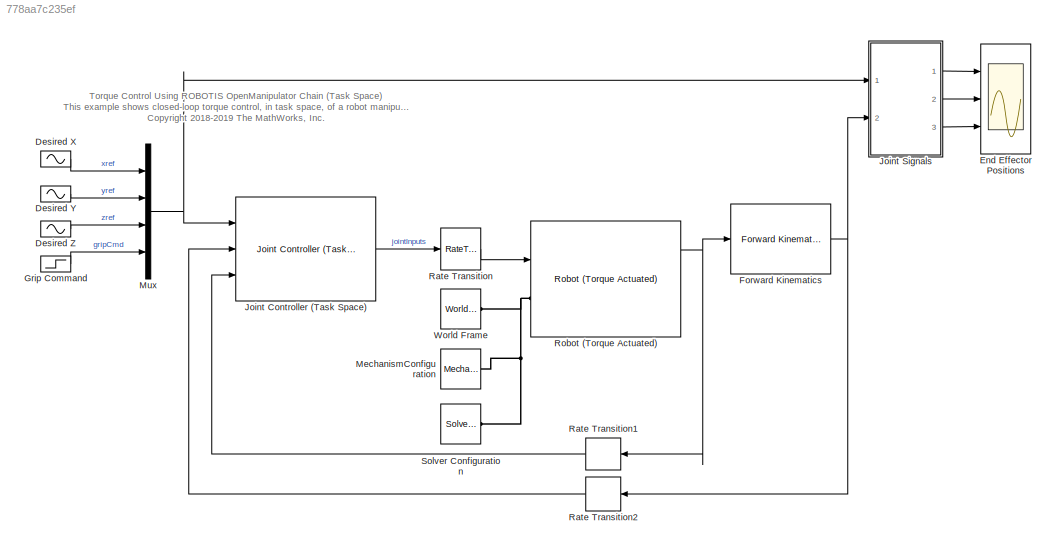
MODEL slx_778aa7c235ef
KIND model
CONFIG AbsTol = auto
CONFIG EnableMultiTasking = off
CONFIG FixedStep = auto
CONFIG MaxStep = auto
CONFIG MinStep = auto
CONFIG PreLoadFcn = openManipulatorParameters;
CONFIG RelTol = 1e-3
CONFIG SampleTimeConstraint = Unconstrained
CONFIG Solver = VariableStepAuto
CONFIG SolverName = VariableStepAuto
CONFIG StartTime = 0.0
CONFIG StopTime = 20
BLOCK [Sin] Desired X
  Amplitude = 0.1
  Bias = 0.2
  Frequency = 0.3
  Phase = pi/4
  Ports = [0, 1]
  SampleTime = TsCtrl
BLOCK [Sin] Desired Y
  Amplitude = 0.1
  Frequency = 0.4
  Ports = [0, 1]
  SampleTime = TsCtrl
BLOCK [Sin] Desired Z
  Amplitude = 0.05
  Bias = 0.2
  Frequency = 0.5
  Ports = [0, 1]
  SampleTime = TsCtrl
BLOCK [Scope] End Effector Positions
  Floating = off
  NumInputPorts = 3
  Ports = [3]
  ScopeSpecificationString = Simulink.scopes.TimeScopeBlockCfg('CurrentConfiguration', extmgr.ConfigurationSet(extmgr.Configuration('Core','General UI',true),extmgr.Configuration('Core','Source UI',true),extmgr.Configuration('Sources','WiredSimulink',true),extmgr.Configuration('Visuals','Time Domain',true,'SerializedDisplays',{struct('MinYLimReal','0.23896','MaxYLimReal','0.30678','YLabelReal','','MinYLimMag','0.23896','MaxYL...<+2721ch>
BLOCK [Reference] Forward Kinematics  REF=OpenManipulatorLib/Forward Kinematics
  Ports = [1, 1]
  SourceBlock = OpenManipulatorLib/Forward Kinematics
  SourceType = SubSystem
BLOCK [Step] Grip Command
  SampleTime = TsCtrl
  Time = 10
BLOCK [Reference] Joint Controller (Task Space)  REF=OpenManipulatorLib/Joint Controller (Task Space)
  Ports = [3, 1]
  SourceBlock = OpenManipulatorLib/Joint Controller (Task Space)
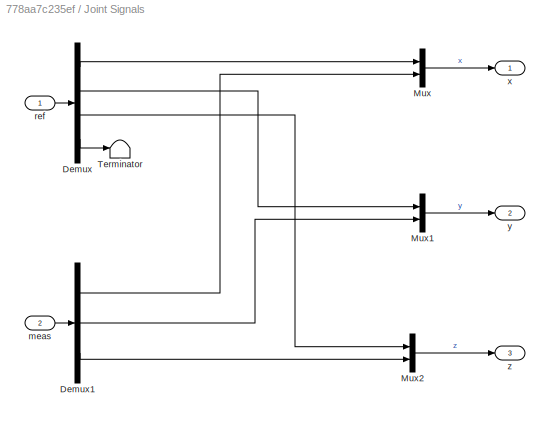
BLOCK [SubSystem] Joint Signals
  Ports = [2, 3]
  RequestExecContextInheritance = off
BLOCK [Demux] Joint Signals/Demux
  DisplayOption = bar
  Ports = [1, 4]
BLOCK [Demux] Joint Signals/Demux1
  DisplayOption = bar
  Outputs = 3
  Ports = [1, 3]
BLOCK [Mux] Joint Signals/Mux
  DisplayOption = bar
  Inputs = 2
  Ports = [2, 1]
BLOCK [Mux] Joint Signals/Mux1
  DisplayOption = bar
  Inputs = 2
  Ports = [2, 1]
BLOCK [Mux] Joint Signals/Mux2
  DisplayOption = bar
  Inputs = 2
  Ports = [2, 1]
BLOCK [Terminator] Joint Signals/Terminator
BLOCK [Inport] Joint Signals/meas
  IconDisplay = Port number
  Port = 2
BLOCK [Inport] Joint Signals/ref
  IconDisplay = Port number
BLOCK [Outport] Joint Signals/x
  IconDisplay = Port number
  VectorParamsAs1DForOutWhenUnconnected = off
BLOCK [Outport] Joint Signals/y
  IconDisplay = Port number
  Port = 2
  VectorParamsAs1DForOutWhenUnconnected = off
BLOCK [Outport] Joint Signals/z
  IconDisplay = Port number
  Port = 3
  VectorParamsAs1DForOutWhenUnconnected = off
BLOCK [Reference] MechanismConfiguration  REF=sm_lib/Utilities/Mechanism
Configuration
  Ports = [0, 0, 0, 0, 0, 0, 1]
  SourceBlock = sm_lib/Utilities/Mechanism\nConfiguration
  SourceProductBaseCode = MS
  SourceProductName = Simscape Multibody
  SourceType = Mechanism\nConfiguration
BLOCK [Mux] Mux
  DisplayOption = bar
  Ports = [4, 1]
BLOCK [RateTransition] Rate Transition
BLOCK [RateTransition] Rate Transition1
BLOCK [RateTransition] Rate Transition2
BLOCK [Reference] Robot (Torque Actuated)  REF=OpenManipulatorLib/Robot 
(Torque Actuated)
  Ports = [1, 1, 0, 0, 0, 1, 2]
  SourceBlock = OpenManipulatorLib/Robot \n(Torque Actuated)
BLOCK [Reference] Solver Configuration  REF=nesl_utility/Solver
Configuration
  Ports = [0, 0, 0, 0, 0, 0, 1]
  SourceBlock = nesl_utility/Solver\nConfiguration
  SourceProductBaseCode = SS
  SourceProductName = Simscape
  SourceType = Solver\nConfiguration
BLOCK [Reference] World Frame  REF=sm_lib/Frames and
Transforms/World Frame
  Ports = [0, 0, 0, 0, 0, 0, 1]
  SourceBlock = sm_lib/Frames and\nTransforms/World Frame
  SourceProductBaseCode = MS
  SourceProductName = Simscape Multibody
  SourceType = World Frame
ANNOTATION (root): Torque Control Using ROBOTIS OpenManipulator Chain (Task Space) This example shows closed-loop torque control, in task space, of a robot manipulator to track a set of reference end effector positions. <copyright redacted>
LINE Desired X:1 -> Mux:1
LINE Desired Y:1 -> Mux:2
LINE Desired Z:1 -> Mux:3
NET Forward Kinematics:1 -> Joint Signals:2, Rate Transition2:1
LINE Grip Command:1 -> Mux:4
LINE Joint Controller (Task Space):1 -> Rate Transition:1
LINE Joint Signals/Demux1:1 -> Joint Signals/Mux:2
LINE Joint Signals/Demux1:2 -> Joint Signals/Mux1:2
LINE Joint Signals/Demux1:3 -> Joint Signals/Mux2:2
LINE Joint Signals/Demux:1 -> Joint Signals/Mux:1
LINE Joint Signals/Demux:2 -> Joint Signals/Mux1:1
LINE Joint Signals/Demux:3 -> Joint Signals/Mux2:1
LINE Joint Signals/Demux:4 -> Joint Signals/Terminator:1
LINE Joint Signals/Mux1:1 -> Joint Signals/y:1
LINE Joint Signals/Mux2:1 -> Joint Signals/z:1
LINE Joint Signals/Mux:1 -> Joint Signals/x:1
LINE Joint Signals/meas:1 -> Joint Signals/Demux1:1
LINE Joint Signals/ref:1 -> Joint Signals/Demux:1
LINE Joint Signals:1 -> End Effector Positions:1
LINE Joint Signals:2 -> End Effector Positions:2
LINE Joint Signals:3 -> End Effector Positions:3
NET Mux:1 -> Joint Controller (Task Space):1, Joint Signals:1
LINE Rate Transition1:1 -> Joint Controller (Task Space):3
LINE Rate Transition2:1 -> Joint Controller (Task Space):2
LINE Rate Transition:1 -> Robot (Torque Actuated):1
NET Robot (Torque Actuated):1 -> Forward Kinematics:1, Rate Transition1:1
PNET net1: MechanismConfiguration:RConn1 -- Robot (Torque Actuated):LConn1 -- Solver Configuration:RConn1 -- World Frame:RConn1
note: NET lines group one-source signal fan-out (src -> all destinations, sorted); 1:1 wires keep LINE; PNET lines group multi-terminal physical nets as a canonical sorted terminal list (undirected conserving connections); 2-terminal nets keep the pairwise PLINE form
